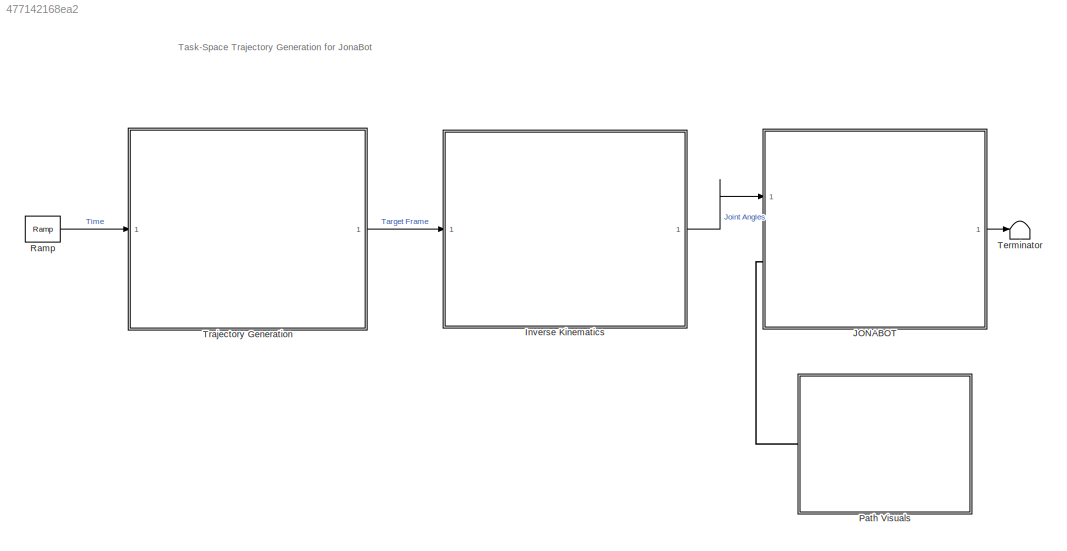
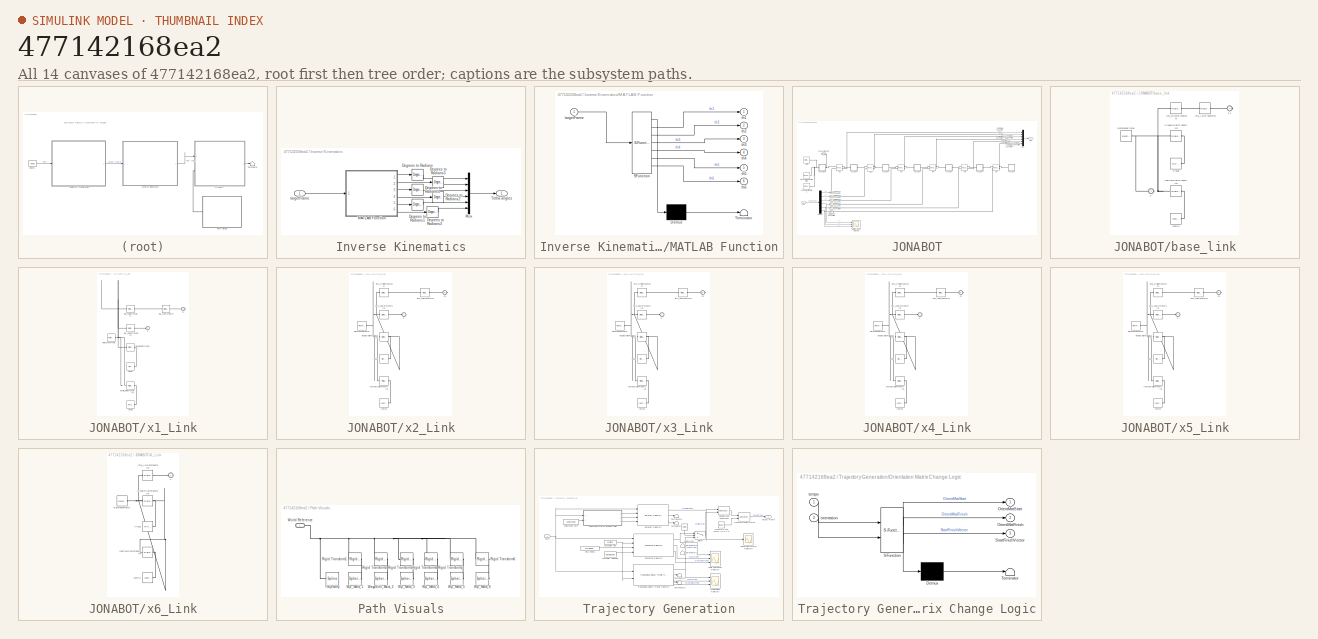
[diagram: thumbnail index - all 14 canvases of the model, root first then tree order]
MODEL slx_477142168ea2
KIND model
CONFIG AbsTol = auto
CONFIG EnableMultiTasking = off
CONFIG FixedStep = auto
CONFIG MaxStep = auto
CONFIG MinStep = auto
CONFIG RelTol = 1e-3
CONFIG SampleTimeConstraint = Unconstrained
CONFIG SolverName = VariableStepAuto
CONFIG StartTime = 0.0
CONFIG StopTime = 10.0
WORKSPACE source: external: MAT-File  (data not in archive)
BLOCK [SubSystem] Inverse Kinematics
  Ports = [1, 1]
  Priority = 2
  RequestExecContextInheritance = off
BLOCK [Reference] Inverse Kinematics/Degrees to Radians  REF=simulink_extras/Transformations/Degrees to
Radians
  Ports = [1, 1]
  SourceBlock = simulink_extras/Transformations/Degrees to\nRadians
  SourceProductBaseCode = SL
  SourceType = DegreesToRadians
BLOCK [Reference] Inverse Kinematics/Degrees to Radians1  REF=simulink_extras/Transformations/Degrees to
Radians
  Ports = [1, 1]
  SourceBlock = simulink_extras/Transformations/Degrees to\nRadians
  SourceProductBaseCode = SL
  SourceType = DegreesToRadians
BLOCK [Reference] Inverse Kinematics/Degrees to Radians2  REF=simulink_extras/Transformations/Degrees to
Radians
  Ports = [1, 1]
  SourceBlock = simulink_extras/Transformations/Degrees to\nRadians
  SourceProductBaseCode = SL
  SourceType = DegreesToRadians
BLOCK [Reference] Inverse Kinematics/Degrees to Radians3  REF=simulink_extras/Transformations/Degrees to
Radians
  Ports = [1, 1]
  SourceBlock = simulink_extras/Transformations/Degrees to\nRadians
  SourceProductBaseCode = SL
  SourceType = DegreesToRadians
BLOCK [Reference] Inverse Kinematics/Degrees to Radians4  REF=simulink_extras/Transformations/Degrees to
Radians
  Ports = [1, 1]
  SourceBlock = simulink_extras/Transformations/Degrees to\nRadians
  SourceProductBaseCode = SL
  SourceType = DegreesToRadians
BLOCK [Reference] Inverse Kinematics/Degrees to Radians5  REF=simulink_extras/Transformations/Degrees to
Radians
  Ports = [1, 1]
  SourceBlock = simulink_extras/Transformations/Degrees to\nRadians
  SourceProductBaseCode = SL
  SourceType = DegreesToRadians
BLOCK [SubSystem] Inverse Kinematics/MATLAB Function
  ErrorFcn = Stateflow.Translate.translate
  PermitHierarchicalResolution = ExplicitOnly
  Ports = [1, 6]
  RequestExecContextInheritance = off
  SFBlockType = MATLAB Function
  TreatAsAtomicUnit = on
BLOCK [Demux] Inverse Kinematics/MATLAB Function/ Demux 
  Outputs = 1
  Ports = [1, 1]
BLOCK [S-Function] Inverse Kinematics/MATLAB Function/ SFunction 
  EnableBusSupport = on
  FunctionName = sf_sfun
  PortCounts = [1 7]
  Ports = [1, 7]
  SFcnIsStateOwnerBlock = off
  SFunctionDeploymentMode = off
  Tag = Stateflow S-Function 2
BLOCK [Terminator] Inverse Kinematics/MATLAB Function/ Terminator 
BLOCK [Inport] Inverse Kinematics/MATLAB Function/targetFrame
BLOCK [Outport] Inverse Kinematics/MATLAB Function/th1
BLOCK [Outport] Inverse Kinematics/MATLAB Function/th2
  Port = 2
BLOCK [Outport] Inverse Kinematics/MATLAB Function/th3
  Port = 3
BLOCK [Outport] Inverse Kinematics/MATLAB Function/th4
  Port = 4
BLOCK [Outport] Inverse Kinematics/MATLAB Function/th5
  Port = 5
BLOCK [Outport] Inverse Kinematics/MATLAB Function/th6
  Port = 6
BLOCK [Mux] Inverse Kinematics/Mux
  DisplayOption = bar
  Inputs = 6
  Ports = [6, 1]
BLOCK [Outport] Inverse Kinematics/Tetha angles
BLOCK [Inport] Inverse Kinematics/targetFrame
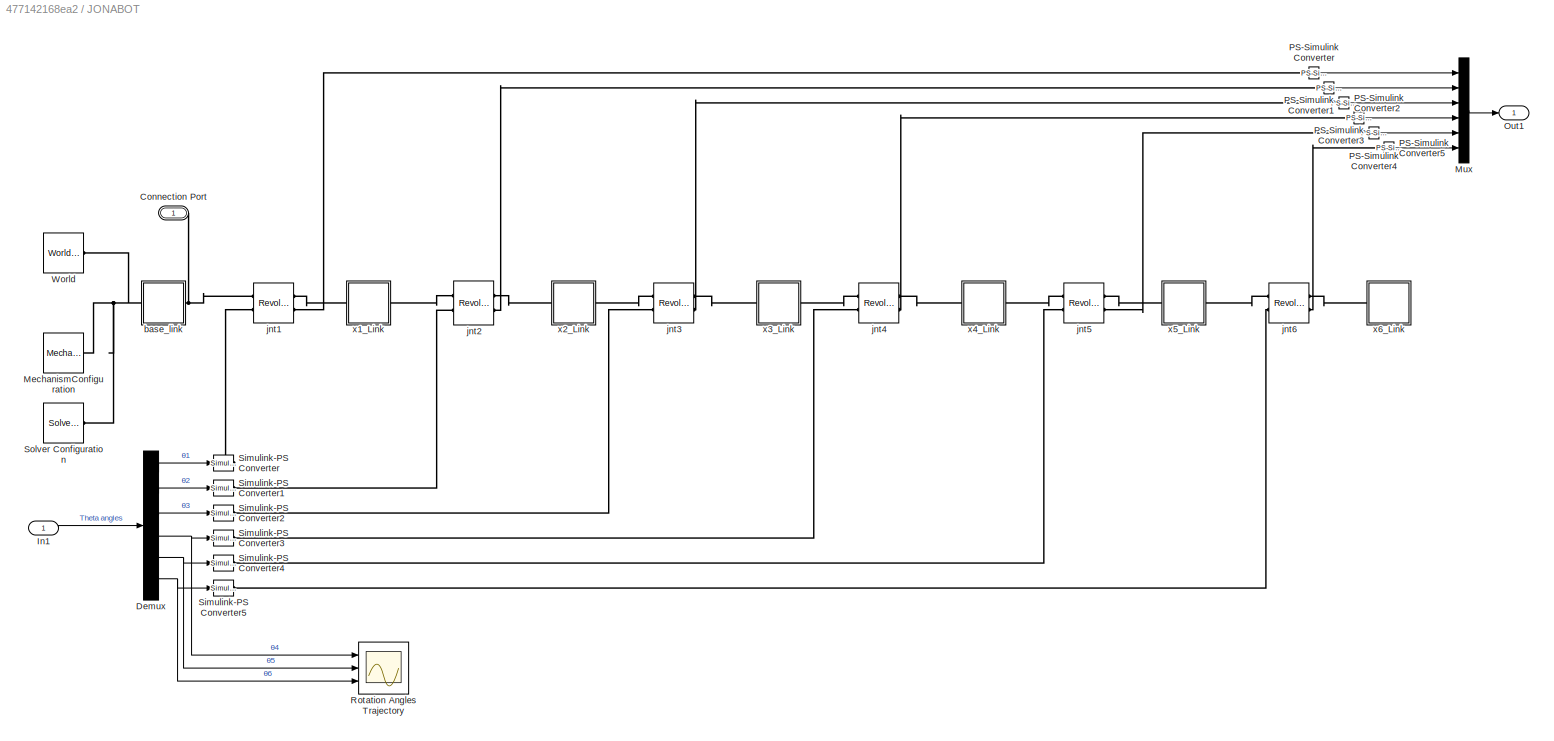
BLOCK [SubSystem] JONABOT
  Ports = [1, 1, 0, 0, 0, 1]
  Priority = 3
  RequestExecContextInheritance = off
BLOCK [PMIOPort] JONABOT/Connection Port
  Side = Left
BLOCK [Demux] JONABOT/Demux
  Outputs = 6
  Ports = [1, 6]
BLOCK [Inport] JONABOT/In1
BLOCK [Reference] JONABOT/MechanismConfiguration  REF=sm_lib/Utilities/Mechanism
Configuration
  Ports = [0, 0, 0, 0, 0, 0, 1]
  SourceBlock = sm_lib/Utilities/Mechanism\nConfiguration
  SourceProductBaseCode = MS
  SourceType = Mechanism\nConfiguration
BLOCK [Mux] JONABOT/Mux
  DisplayOption = bar
  Inputs = 6
  Ports = [6, 1]
BLOCK [Outport] JONABOT/Out1
BLOCK [Reference] JONABOT/PS-Simulink Converter  REF=nesl_utility/PS-Simulink
Converter
  Ports = [0, 1, 0, 0, 0, 1]
  SourceBlock = nesl_utility/PS-Simulink\nConverter
  SourceProductBaseCode = PW,SS
  SourceType = PS-Simulink\nConverter
BLOCK [Reference] JONABOT/PS-Simulink Converter1  REF=nesl_utility/PS-Simulink
Converter
  Ports = [0, 1, 0, 0, 0, 1]
  SourceBlock = nesl_utility/PS-Simulink\nConverter
  SourceProductBaseCode = PW,SS
  SourceType = PS-Simulink\nConverter
BLOCK [Reference] JONABOT/PS-Simulink Converter2  REF=nesl_utility/PS-Simulink
Converter
  Ports = [0, 1, 0, 0, 0, 1]
  SourceBlock = nesl_utility/PS-Simulink\nConverter
  SourceProductBaseCode = PW,SS
  SourceType = PS-Simulink\nConverter
BLOCK [Reference] JONABOT/PS-Simulink Converter3  REF=nesl_utility/PS-Simulink
Converter
  Ports = [0, 1, 0, 0, 0, 1]
  SourceBlock = nesl_utility/PS-Simulink\nConverter
  SourceProductBaseCode = PW,SS
  SourceType = PS-Simulink\nConverter
BLOCK [Reference] JONABOT/PS-Simulink Converter4  REF=nesl_utility/PS-Simulink
Converter
  Ports = [0, 1, 0, 0, 0, 1]
  SourceBlock = nesl_utility/PS-Simulink\nConverter
  SourceProductBaseCode = PW,SS
  SourceType = PS-Simulink\nConverter
BLOCK [Reference] JONABOT/PS-Simulink Converter5  REF=nesl_utility/PS-Simulink
Converter
  Ports = [0, 1, 0, 0, 0, 1]
  SourceBlock = nesl_utility/PS-Simulink\nConverter
  SourceProductBaseCode = PW,SS
  SourceType = PS-Simulink\nConverter
BLOCK [Scope] JONABOT/Rotation Angles Trajectory
  Floating = off
  NumInputPorts = 3
  Ports = [3]
  ScopeSpecificationString = Simulink.scopes.TimeScopeBlockCfg('CurrentConfiguration', extmgr.ConfigurationSet(extmgr.Configuration('Core','General UI',true),extmgr.Configuration('Core','Source UI',true),extmgr.Configuration('Sources','WiredSimulink',true,'DataLoggingVariableName','ScopeData2'),extmgr.Configuration('Visuals','Time Domain',true,'SerializedDisplays',{struct('MinYLimReal','-3.92697','MaxYLimReal','3.92699','YLab...<+1564ch>
BLOCK [Reference] JONABOT/Simulink-PS Converter  REF=nesl_utility/Simulink-PS
Converter
  Ports = [1, 0, 0, 0, 0, 0, 1]
  SourceBlock = nesl_utility/Simulink-PS\nConverter
  SourceProductBaseCode = PW,SS
  SourceType = Simulink-PS\nConverter
BLOCK [Reference] JONABOT/Simulink-PS Converter1  REF=nesl_utility/Simulink-PS
Converter
  Ports = [1, 0, 0, 0, 0, 0, 1]
  SourceBlock = nesl_utility/Simulink-PS\nConverter
  SourceProductBaseCode = PW,SS
  SourceType = Simulink-PS\nConverter
BLOCK [Reference] JONABOT/Simulink-PS Converter2  REF=nesl_utility/Simulink-PS
Converter
  Ports = [1, 0, 0, 0, 0, 0, 1]
  SourceBlock = nesl_utility/Simulink-PS\nConverter
  SourceProductBaseCode = PW,SS
  SourceType = Simulink-PS\nConverter
BLOCK [Reference] JONABOT/Simulink-PS Converter3  REF=nesl_utility/Simulink-PS
Converter
  Ports = [1, 0, 0, 0, 0, 0, 1]
  SourceBlock = nesl_utility/Simulink-PS\nConverter
  SourceProductBaseCode = PW,SS
  SourceType = Simulink-PS\nConverter
BLOCK [Reference] JONABOT/Simulink-PS Converter4  REF=nesl_utility/Simulink-PS
Converter
  Ports = [1, 0, 0, 0, 0, 0, 1]
  SourceBlock = nesl_utility/Simulink-PS\nConverter
  SourceProductBaseCode = PW,SS
  SourceType = Simulink-PS\nConverter
BLOCK [Reference] JONABOT/Simulink-PS Converter5  REF=nesl_utility/Simulink-PS
Converter
  Ports = [1, 0, 0, 0, 0, 0, 1]
  SourceBlock = nesl_utility/Simulink-PS\nConverter
  SourceProductBaseCode = PW,SS
  SourceType = Simulink-PS\nConverter
BLOCK [Reference] JONABOT/Solver Configuration  REF=nesl_utility/Solver
Configuration
  Ports = [0, 0, 0, 0, 0, 0, 1]
  SourceBlock = nesl_utility/Solver\nConfiguration
  SourceProductBaseCode = PW,SS
  SourceType = Solver\nConfiguration
BLOCK [Reference] JONABOT/World  REF=sm_lib/Frames and
Transforms/World Frame
  Ports = [0, 0, 0, 0, 0, 0, 1]
  SourceBlock = sm_lib/Frames and\nTransforms/World Frame
  SourceProductBaseCode = MS
  SourceType = World Frame
BLOCK [SubSystem] JONABOT/base_link
  Ports = [0, 0, 0, 0, 0, 1, 1]
  RequestExecContextInheritance = off
BLOCK [PMIOPort] JONABOT/base_link/F
  Side = Left
BLOCK [PMIOPort] JONABOT/base_link/F1
  Port = 2
  Side = Right
BLOCK [Reference] JONABOT/base_link/Inertia  REF=sm_lib/Body Elements/Inertia
  Ports = [0, 0, 0, 0, 0, 0, 1]
  SourceBlock = sm_lib/Body Elements/Inertia
  SourceProductBaseCode = MS
  SourceType = Inertia
BLOCK [Reference] JONABOT/base_link/InertiaOriginTransform  REF=sm_lib/Frames and
Transforms/Rigid
Transform
  Ports = [0, 0, 0, 0, 0, 1, 1]
  SourceBlock = sm_lib/Frames and\nTransforms/Rigid\nTransform
  SourceProductBaseCode = MS
  SourceType = Rigid\nTransform
BLOCK [Reference] JONABOT/base_link/ReferenceFrame  REF=sm_lib/Frames and
Transforms/Reference
Frame
  Ports = [0, 0, 0, 0, 0, 0, 1]
  SourceBlock = sm_lib/Frames and\nTransforms/Reference\nFrame
  SourceProductBaseCode = MS
  SourceType = Reference\nFrame
BLOCK [Reference] JONABOT/base_link/Visual  REF=sm_lib/Body Elements/File Solid
  Ports = [0, 0, 0, 0, 0, 0, 1]
  SourceBlock = sm_lib/Body Elements/File Solid
  SourceProductBaseCode = MS
  SourceType = File Solid
BLOCK [Reference] JONABOT/base_link/VisualOriginTransform  REF=sm_lib/Frames and
Transforms/Rigid
Transform
  Ports = [0, 0, 0, 0, 0, 1, 1]
  SourceBlock = sm_lib/Frames and\nTransforms/Rigid\nTransform
  SourceProductBaseCode = MS
  SourceType = Rigid\nTransform
BLOCK [Reference] JONABOT/base_link/jnt1_AxisTransform  REF=sm_lib/Frames and
Transforms/Rigid
Transform
  Ports = [0, 0, 0, 0, 0, 1, 1]
  SourceBlock = sm_lib/Frames and\nTransforms/Rigid\nTransform
  SourceProductBaseCode = MS
  SourceType = Rigid\nTransform
BLOCK [Reference] JONABOT/base_link/jnt1_OriginTransform  REF=sm_lib/Frames and
Transforms/Rigid
Transform
  Ports = [0, 0, 0, 0, 0, 1, 1]
  SourceBlock = sm_lib/Frames and\nTransforms/Rigid\nTransform
  SourceProductBaseCode = MS
  SourceType = Rigid\nTransform
BLOCK [Reference] JONABOT/jnt1  REF=sm_lib/Joints/Revolute Joint
  Ports = [0, 0, 0, 0, 0, 2, 2]
  SourceBlock = sm_lib/Joints/Revolute Joint
  SourceProductBaseCode = MS
  SourceType = Revolute Joint
BLOCK [Reference] JONABOT/jnt2  REF=sm_lib/Joints/Revolute Joint
  Ports = [0, 0, 0, 0, 0, 2, 2]
  SourceBlock = sm_lib/Joints/Revolute Joint
  SourceProductBaseCode = MS
  SourceType = Revolute Joint
BLOCK [Reference] JONABOT/jnt3  REF=sm_lib/Joints/Revolute Joint
  Ports = [0, 0, 0, 0, 0, 2, 2]
  SourceBlock = sm_lib/Joints/Revolute Joint
  SourceProductBaseCode = MS
  SourceType = Revolute Joint
BLOCK [Reference] JONABOT/jnt4  REF=sm_lib/Joints/Revolute Joint
  Ports = [0, 0, 0, 0, 0, 2, 2]
  SourceBlock = sm_lib/Joints/Revolute Joint
  SourceProductBaseCode = MS
  SourceType = Revolute Joint
BLOCK [Reference] JONABOT/jnt5  REF=sm_lib/Joints/Revolute Joint
  Ports = [0, 0, 0, 0, 0, 2, 2]
  SourceBlock = sm_lib/Joints/Revolute Joint
  SourceProductBaseCode = MS
  SourceType = Revolute Joint
BLOCK [Reference] JONABOT/jnt6  REF=sm_lib/Joints/Revolute Joint
  Ports = [0, 0, 0, 0, 0, 2, 2]
  SourceBlock = sm_lib/Joints/Revolute Joint
  SourceProductBaseCode = MS
  SourceType = Revolute Joint
BLOCK [SubSystem] JONABOT/x1_Link
  Ports = [0, 0, 0, 0, 0, 1, 1]
  RequestExecContextInheritance = off
BLOCK [PMIOPort] JONABOT/x1_Link/F
  Side = Left
BLOCK [PMIOPort] JONABOT/x1_Link/F1
  Port = 2
  Side = Right
BLOCK [Reference] JONABOT/x1_Link/Inertia  REF=sm_lib/Body Elements/Inertia
  Ports = [0, 0, 0, 0, 0, 0, 1]
  SourceBlock = sm_lib/Body Elements/Inertia
  SourceProductBaseCode = MS
  SourceType = Inertia
BLOCK [Reference] JONABOT/x1_Link/InertiaOriginTransform  REF=sm_lib/Frames and
Transforms/Rigid
Transform
  Ports = [0, 0, 0, 0, 0, 1, 1]
  SourceBlock = sm_lib/Frames and\nTransforms/Rigid\nTransform
  SourceProductBaseCode = MS
  SourceType = Rigid\nTransform
BLOCK [Reference] JONABOT/x1_Link/ReferenceFrame  REF=sm_lib/Frames and
Transforms/Reference
Frame
  Ports = [0, 0, 0, 0, 0, 0, 1]
  SourceBlock = sm_lib/Frames and\nTransforms/Reference\nFrame
  SourceProductBaseCode = MS
  SourceType = Reference\nFrame
BLOCK [Reference] JONABOT/x1_Link/Visual  REF=sm_lib/Body Elements/File Solid
  Ports = [0, 0, 0, 0, 0, 0, 1]
  SourceBlock = sm_lib/Body Elements/File Solid
  SourceProductBaseCode = MS
  SourceType = File Solid
BLOCK [Reference] JONABOT/x1_Link/VisualOriginTransform  REF=sm_lib/Frames and
Transforms/Rigid
Transform
  Ports = [0, 0, 0, 0, 0, 1, 1]
  SourceBlock = sm_lib/Frames and\nTransforms/Rigid\nTransform
  SourceProductBaseCode = MS
  SourceType = Rigid\nTransform
BLOCK [Reference] JONABOT/x1_Link/jnt1_AxisInvTransform  REF=sm_lib/Frames and
Transforms/Rigid
Transform
  Ports = [0, 0, 0, 0, 0, 1, 1]
  SourceBlock = sm_lib/Frames and\nTransforms/Rigid\nTransform
  SourceProductBaseCode = MS
  SourceType = Rigid\nTransform
BLOCK [Reference] JONABOT/x1_Link/jnt2_AxisTransform  REF=sm_lib/Frames and
Transforms/Rigid
Transform
  Ports = [0, 0, 0, 0, 0, 1, 1]
  SourceBlock = sm_lib/Frames and\nTransforms/Rigid\nTransform
  SourceProductBaseCode = MS
  SourceType = Rigid\nTransform
BLOCK [Reference] JONABOT/x1_Link/jnt2_OriginTransform  REF=sm_lib/Frames and
Transforms/Rigid
Transform
  Ports = [0, 0, 0, 0, 0, 1, 1]
  SourceBlock = sm_lib/Frames and\nTransforms/Rigid\nTransform
  SourceProductBaseCode = MS
  SourceType = Rigid\nTransform
BLOCK [SubSystem] JONABOT/x2_Link
  Ports = [0, 0, 0, 0, 0, 1, 1]
  RequestExecContextInheritance = off
BLOCK [PMIOPort] JONABOT/x2_Link/F
  Side = Left
BLOCK [PMIOPort] JONABOT/x2_Link/F1
  Port = 2
  Side = Right
BLOCK [Reference] JONABOT/x2_Link/Inertia  REF=sm_lib/Body Elements/Inertia
  Ports = [0, 0, 0, 0, 0, 0, 1]
  SourceBlock = sm_lib/Body Elements/Inertia
  SourceProductBaseCode = MS
  SourceType = Inertia
BLOCK [Reference] JONABOT/x2_Link/InertiaOriginTransform  REF=sm_lib/Frames and
Transforms/Rigid
Transform
  Ports = [0, 0, 0, 0, 0, 1, 1]
  SourceBlock = sm_lib/Frames and\nTransforms/Rigid\nTransform
  SourceProductBaseCode = MS
  SourceType = Rigid\nTransform
BLOCK [Reference] JONABOT/x2_Link/ReferenceFrame  REF=sm_lib/Frames and
Transforms/Reference
Frame
  Ports = [0, 0, 0, 0, 0, 0, 1]
  SourceBlock = sm_lib/Frames and\nTransforms/Reference\nFrame
  SourceProductBaseCode = MS
  SourceType = Reference\nFrame
BLOCK [Reference] JONABOT/x2_Link/Visual  REF=sm_lib/Body Elements/File Solid
  Ports = [0, 0, 0, 0, 0, 0, 1]
  SourceBlock = sm_lib/Body Elements/File Solid
  SourceProductBaseCode = MS
  SourceType = File Solid
BLOCK [Reference] JONABOT/x2_Link/VisualOriginTransform  REF=sm_lib/Frames and
Transforms/Rigid
Transform
  Ports = [0, 0, 0, 0, 0, 1, 1]
  SourceBlock = sm_lib/Frames and\nTransforms/Rigid\nTransform
  SourceProductBaseCode = MS
  SourceType = Rigid\nTransform
BLOCK [Reference] JONABOT/x2_Link/jnt2_AxisInvTransform  REF=sm_lib/Frames and
Transforms/Rigid
Transform
  Ports = [0, 0, 0, 0, 0, 1, 1]
  SourceBlock = sm_lib/Frames and\nTransforms/Rigid\nTransform
  SourceProductBaseCode = MS
  SourceType = Rigid\nTransform
BLOCK [Reference] JONABOT/x2_Link/jnt3_AxisTransform  REF=sm_lib/Frames and
Transforms/Rigid
Transform
  Ports = [0, 0, 0, 0, 0, 1, 1]
  SourceBlock = sm_lib/Frames and\nTransforms/Rigid\nTransform
  SourceProductBaseCode = MS
  SourceType = Rigid\nTransform
BLOCK [Reference] JONABOT/x2_Link/jnt3_OriginTransform  REF=sm_lib/Frames and
Transforms/Rigid
Transform
  Ports = [0, 0, 0, 0, 0, 1, 1]
  SourceBlock = sm_lib/Frames and\nTransforms/Rigid\nTransform
  SourceProductBaseCode = MS
  SourceType = Rigid\nTransform
BLOCK [SubSystem] JONABOT/x3_Link
  Ports = [0, 0, 0, 0, 0, 1, 1]
  RequestExecContextInheritance = off
BLOCK [PMIOPort] JONABOT/x3_Link/F
  Side = Left
BLOCK [PMIOPort] JONABOT/x3_Link/F1
  Port = 2
  Side = Right
BLOCK [Reference] JONABOT/x3_Link/Inertia  REF=sm_lib/Body Elements/Inertia
  Ports = [0, 0, 0, 0, 0, 0, 1]
  SourceBlock = sm_lib/Body Elements/Inertia
  SourceProductBaseCode = MS
  SourceType = Inertia
BLOCK [Reference] JONABOT/x3_Link/InertiaOriginTransform  REF=sm_lib/Frames and
Transforms/Rigid
Transform
  Ports = [0, 0, 0, 0, 0, 1, 1]
  SourceBlock = sm_lib/Frames and\nTransforms/Rigid\nTransform
  SourceProductBaseCode = MS
  SourceType = Rigid\nTransform
BLOCK [Reference] JONABOT/x3_Link/ReferenceFrame  REF=sm_lib/Frames and
Transforms/Reference
Frame
  Ports = [0, 0, 0, 0, 0, 0, 1]
  SourceBlock = sm_lib/Frames and\nTransforms/Reference\nFrame
  SourceProductBaseCode = MS
  SourceType = Reference\nFrame
BLOCK [Reference] JONABOT/x3_Link/Visual  REF=sm_lib/Body Elements/File Solid
  Ports = [0, 0, 0, 0, 0, 0, 1]
  SourceBlock = sm_lib/Body Elements/File Solid
  SourceProductBaseCode = MS
  SourceType = File Solid
BLOCK [Reference] JONABOT/x3_Link/VisualOriginTransform  REF=sm_lib/Frames and
Transforms/Rigid
Transform
  Ports = [0, 0, 0, 0, 0, 1, 1]
  SourceBlock = sm_lib/Frames and\nTransforms/Rigid\nTransform
  SourceProductBaseCode = MS
  SourceType = Rigid\nTransform
BLOCK [Reference] JONABOT/x3_Link/jnt3_AxisInvTransform  REF=sm_lib/Frames and
Transforms/Rigid
Transform
  Ports = [0, 0, 0, 0, 0, 1, 1]
  SourceBlock = sm_lib/Frames and\nTransforms/Rigid\nTransform
  SourceProductBaseCode = MS
  SourceType = Rigid\nTransform
BLOCK [Reference] JONABOT/x3_Link/jnt4_AxisTransform  REF=sm_lib/Frames and
Transforms/Rigid
Transform
  Ports = [0, 0, 0, 0, 0, 1, 1]
  SourceBlock = sm_lib/Frames and\nTransforms/Rigid\nTransform
  SourceProductBaseCode = MS
  SourceType = Rigid\nTransform
BLOCK [Reference] JONABOT/x3_Link/jnt4_OriginTransform  REF=sm_lib/Frames and
Transforms/Rigid
Transform
  Ports = [0, 0, 0, 0, 0, 1, 1]
  SourceBlock = sm_lib/Frames and\nTransforms/Rigid\nTransform
  SourceProductBaseCode = MS
  SourceType = Rigid\nTransform
BLOCK [SubSystem] JONABOT/x4_Link
  Ports = [0, 0, 0, 0, 0, 1, 1]
  RequestExecContextInheritance = off
BLOCK [PMIOPort] JONABOT/x4_Link/F
  Side = Left
BLOCK [PMIOPort] JONABOT/x4_Link/F1
  Port = 2
  Side = Right
BLOCK [Reference] JONABOT/x4_Link/Inertia  REF=sm_lib/Body Elements/Inertia
  Ports = [0, 0, 0, 0, 0, 0, 1]
  SourceBlock = sm_lib/Body Elements/Inertia
  SourceProductBaseCode = MS
  SourceType = Inertia
BLOCK [Reference] JONABOT/x4_Link/InertiaOriginTransform  REF=sm_lib/Frames and
Transforms/Rigid
Transform
  Ports = [0, 0, 0, 0, 0, 1, 1]
  SourceBlock = sm_lib/Frames and\nTransforms/Rigid\nTransform
  SourceProductBaseCode = MS
  SourceType = Rigid\nTransform
BLOCK [Reference] JONABOT/x4_Link/ReferenceFrame  REF=sm_lib/Frames and
Transforms/Reference
Frame
  Ports = [0, 0, 0, 0, 0, 0, 1]
  SourceBlock = sm_lib/Frames and\nTransforms/Reference\nFrame
  SourceProductBaseCode = MS
  SourceType = Reference\nFrame
BLOCK [Reference] JONABOT/x4_Link/Visual  REF=sm_lib/Body Elements/File Solid
  Ports = [0, 0, 0, 0, 0, 0, 1]
  SourceBlock = sm_lib/Body Elements/File Solid
  SourceProductBaseCode = MS
  SourceType = File Solid
BLOCK [Reference] JONABOT/x4_Link/VisualOriginTransform  REF=sm_lib/Frames and
Transforms/Rigid
Transform
  Ports = [0, 0, 0, 0, 0, 1, 1]
  SourceBlock = sm_lib/Frames and\nTransforms/Rigid\nTransform
  SourceProductBaseCode = MS
  SourceType = Rigid\nTransform
BLOCK [Reference] JONABOT/x4_Link/jnt4_AxisInvTransform  REF=sm_lib/Frames and
Transforms/Rigid
Transform
  Ports = [0, 0, 0, 0, 0, 1, 1]
  SourceBlock = sm_lib/Frames and\nTransforms/Rigid\nTransform
  SourceProductBaseCode = MS
  SourceType = Rigid\nTransform
BLOCK [Reference] JONABOT/x4_Link/jnt5_AxisTransform  REF=sm_lib/Frames and
Transforms/Rigid
Transform
  Ports = [0, 0, 0, 0, 0, 1, 1]
  SourceBlock = sm_lib/Frames and\nTransforms/Rigid\nTransform
  SourceProductBaseCode = MS
  SourceType = Rigid\nTransform
BLOCK [Reference] JONABOT/x4_Link/jnt5_OriginTransform  REF=sm_lib/Frames and
Transforms/Rigid
Transform
  Ports = [0, 0, 0, 0, 0, 1, 1]
  SourceBlock = sm_lib/Frames and\nTransforms/Rigid\nTransform
  SourceProductBaseCode = MS
  SourceType = Rigid\nTransform
BLOCK [SubSystem] JONABOT/x5_Link
  Ports = [0, 0, 0, 0, 0, 1, 1]
  RequestExecContextInheritance = off
BLOCK [PMIOPort] JONABOT/x5_Link/F
  Side = Left
BLOCK [PMIOPort] JONABOT/x5_Link/F1
  Port = 2
  Side = Right
BLOCK [Reference] JONABOT/x5_Link/Inertia  REF=sm_lib/Body Elements/Inertia
  Ports = [0, 0, 0, 0, 0, 0, 1]
  SourceBlock = sm_lib/Body Elements/Inertia
  SourceProductBaseCode = MS
  SourceType = Inertia
BLOCK [Reference] JONABOT/x5_Link/InertiaOriginTransform  REF=sm_lib/Frames and
Transforms/Rigid
Transform
  Ports = [0, 0, 0, 0, 0, 1, 1]
  SourceBlock = sm_lib/Frames and\nTransforms/Rigid\nTransform
  SourceProductBaseCode = MS
  SourceType = Rigid\nTransform
BLOCK [Reference] JONABOT/x5_Link/ReferenceFrame  REF=sm_lib/Frames and
Transforms/Reference
Frame
  Ports = [0, 0, 0, 0, 0, 0, 1]
  SourceBlock = sm_lib/Frames and\nTransforms/Reference\nFrame
  SourceProductBaseCode = MS
  SourceType = Reference\nFrame
BLOCK [Reference] JONABOT/x5_Link/Visual  REF=sm_lib/Body Elements/File Solid
  Ports = [0, 0, 0, 0, 0, 0, 1]
  SourceBlock = sm_lib/Body Elements/File Solid
  SourceProductBaseCode = MS
  SourceType = File Solid
BLOCK [Reference] JONABOT/x5_Link/VisualOriginTransform  REF=sm_lib/Frames and
Transforms/Rigid
Transform
  Ports = [0, 0, 0, 0, 0, 1, 1]
  SourceBlock = sm_lib/Frames and\nTransforms/Rigid\nTransform
  SourceProductBaseCode = MS
  SourceType = Rigid\nTransform
BLOCK [Reference] JONABOT/x5_Link/jnt5_AxisInvTransform  REF=sm_lib/Frames and
Transforms/Rigid
Transform
  Ports = [0, 0, 0, 0, 0, 1, 1]
  SourceBlock = sm_lib/Frames and\nTransforms/Rigid\nTransform
  SourceProductBaseCode = MS
  SourceType = Rigid\nTransform
BLOCK [Reference] JONABOT/x5_Link/jnt6_AxisTransform  REF=sm_lib/Frames and
Transforms/Rigid
Transform
  Ports = [0, 0, 0, 0, 0, 1, 1]
  SourceBlock = sm_lib/Frames and\nTransforms/Rigid\nTransform
  SourceProductBaseCode = MS
  SourceType = Rigid\nTransform
BLOCK [Reference] JONABOT/x5_Link/jnt6_OriginTransform  REF=sm_lib/Frames and
Transforms/Rigid
Transform
  Ports = [0, 0, 0, 0, 0, 1, 1]
  SourceBlock = sm_lib/Frames and\nTransforms/Rigid\nTransform
  SourceProductBaseCode = MS
  SourceType = Rigid\nTransform
BLOCK [SubSystem] JONABOT/x6_Link
  Ports = [0, 0, 0, 0, 0, 1]
  RequestExecContextInheritance = off
BLOCK [PMIOPort] JONABOT/x6_Link/F
  Side = Left
BLOCK [Reference] JONABOT/x6_Link/Inertia  REF=sm_lib/Body Elements/Inertia
  Ports = [0, 0, 0, 0, 0, 0, 1]
  SourceBlock = sm_lib/Body Elements/Inertia
  SourceProductBaseCode = MS
  SourceType = Inertia
BLOCK [Reference] JONABOT/x6_Link/InertiaOriginTransform  REF=sm_lib/Frames and
Transforms/Rigid
Transform
  Ports = [0, 0, 0, 0, 0, 1, 1]
  SourceBlock = sm_lib/Frames and\nTransforms/Rigid\nTransform
  SourceProductBaseCode = MS
  SourceType = Rigid\nTransform
BLOCK [Reference] JONABOT/x6_Link/ReferenceFrame  REF=sm_lib/Frames and
Transforms/Reference
Frame
  Ports = [0, 0, 0, 0, 0, 0, 1]
  SourceBlock = sm_lib/Frames and\nTransforms/Reference\nFrame
  SourceProductBaseCode = MS
  SourceType = Reference\nFrame
BLOCK [Reference] JONABOT/x6_Link/Visual  REF=sm_lib/Body Elements/File Solid
  Ports = [0, 0, 0, 0, 0, 0, 1]
  SourceBlock = sm_lib/Body Elements/File Solid
  SourceProductBaseCode = MS
  SourceType = File Solid
BLOCK [Reference] JONABOT/x6_Link/VisualOriginTransform  REF=sm_lib/Frames and
Transforms/Rigid
Transform
  Ports = [0, 0, 0, 0, 0, 1, 1]
  SourceBlock = sm_lib/Frames and\nTransforms/Rigid\nTransform
  SourceProductBaseCode = MS
  SourceType = Rigid\nTransform
BLOCK [Reference] JONABOT/x6_Link/jnt6_AxisInvTransform  REF=sm_lib/Frames and
Transforms/Rigid
Transform
  Ports = [0, 0, 0, 0, 0, 1, 1]
  SourceBlock = sm_lib/Frames and\nTransforms/Rigid\nTransform
  SourceProductBaseCode = MS
  SourceType = Rigid\nTransform
BLOCK [SubSystem] Path Visuals
  Ports = [0, 0, 0, 0, 0, 1]
  RequestExecContextInheritance = off
BLOCK [Reference] Path Visuals/Rigid Transform1  REF=sm_lib/Frames and
Transforms/Rigid
Transform
  Ports = [0, 0, 0, 0, 0, 1, 1]
  SourceBlock = sm_lib/Frames and\nTransforms/Rigid\nTransform
  SourceProductBaseCode = MS
  SourceType = Rigid\nTransform
BLOCK [Reference] Path Visuals/Rigid Transform2  REF=sm_lib/Frames and
Transforms/Rigid
Transform
  Ports = [0, 0, 0, 0, 0, 1, 1]
  SourceBlock = sm_lib/Frames and\nTransforms/Rigid\nTransform
  SourceProductBaseCode = MS
  SourceType = Rigid\nTransform
BLOCK [Reference] Path Visuals/Rigid Transform3  REF=sm_lib/Frames and
Transforms/Rigid
Transform
  Ports = [0, 0, 0, 0, 0, 1, 1]
  SourceBlock = sm_lib/Frames and\nTransforms/Rigid\nTransform
  SourceProductBaseCode = MS
  SourceType = Rigid\nTransform
BLOCK [Reference] Path Visuals/Rigid Transform4  REF=sm_lib/Frames and
Transforms/Rigid
Transform
  Ports = [0, 0, 0, 0, 0, 1, 1]
  SourceBlock = sm_lib/Frames and\nTransforms/Rigid\nTransform
  SourceProductBaseCode = MS
  SourceType = Rigid\nTransform
BLOCK [Reference] Path Visuals/Rigid Transform5  REF=sm_lib/Frames and
Transforms/Rigid
Transform
  Ports = [0, 0, 0, 0, 0, 1, 1]
  SourceBlock = sm_lib/Frames and\nTransforms/Rigid\nTransform
  SourceProductBaseCode = MS
  SourceType = Rigid\nTransform
BLOCK [Reference] Path Visuals/Rigid Transform6  REF=sm_lib/Frames and
Transforms/Rigid
Transform
  Ports = [0, 0, 0, 0, 0, 1, 1]
  SourceBlock = sm_lib/Frames and\nTransforms/Rigid\nTransform
  SourceProductBaseCode = MS
  SourceType = Rigid\nTransform
BLOCK [Reference] Path Visuals/Trajectory  REF=sm_lib/Curves and Surfaces/Spline
  Ports = [0, 0, 0, 0, 0, 1, 1]
  SourceBlock = sm_lib/Curves and Surfaces/Spline
  SourceProductBaseCode = MS
  SourceType = Spline
BLOCK [Reference] Path Visuals/Waypoint_Mark_2  REF=sm_lib/Body Elements/Spherical Solid
  Ports = [0, 0, 0, 0, 0, 0, 1]
  SourceBlock = sm_lib/Body Elements/Spherical Solid
  SourceProductBaseCode = MS
  SourceType = Spherical Solid
BLOCK [PMIOPort] Path Visuals/World Reference
  Side = Left
BLOCK [Reference] Path Visuals/Wp_Mark_1  REF=sm_lib/Body Elements/Spherical Solid
  Ports = [0, 0, 0, 0, 0, 0, 1]
  SourceBlock = sm_lib/Body Elements/Spherical Solid
  SourceProductBaseCode = MS
  SourceType = Spherical Solid
BLOCK [Reference] Path Visuals/Wp_Mark_3  REF=sm_lib/Body Elements/Spherical Solid
  Ports = [0, 0, 0, 0, 0, 0, 1]
  SourceBlock = sm_lib/Body Elements/Spherical Solid
  SourceProductBaseCode = MS
  SourceType = Spherical Solid
BLOCK [Reference] Path Visuals/Wp_Mark_4  REF=sm_lib/Body Elements/Spherical Solid
  Ports = [0, 0, 0, 0, 0, 0, 1]
  SourceBlock = sm_lib/Body Elements/Spherical Solid
  SourceProductBaseCode = MS
  SourceType = Spherical Solid
BLOCK [Reference] Path Visuals/Wp_Mark_5  REF=sm_lib/Body Elements/Spherical Solid
  Ports = [0, 0, 0, 0, 0, 0, 1]
  SourceBlock = sm_lib/Body Elements/Spherical Solid
  SourceProductBaseCode = MS
  SourceType = Spherical Solid
BLOCK [Reference] Path Visuals/Wp_Mark_6  REF=sm_lib/Body Elements/Spherical Solid
  Ports = [0, 0, 0, 0, 0, 0, 1]
  SourceBlock = sm_lib/Body Elements/Spherical Solid
  SourceProductBaseCode = MS
  SourceType = Spherical Solid
BLOCK [Reference] Ramp  REF=simulink/Sources/Ramp
  Ports = [0, 1]
  SourceBlock = simulink/Sources/Ramp
  SourceProductBaseCode = SL
  SourceType = Ramp
BLOCK [Terminator] Terminator
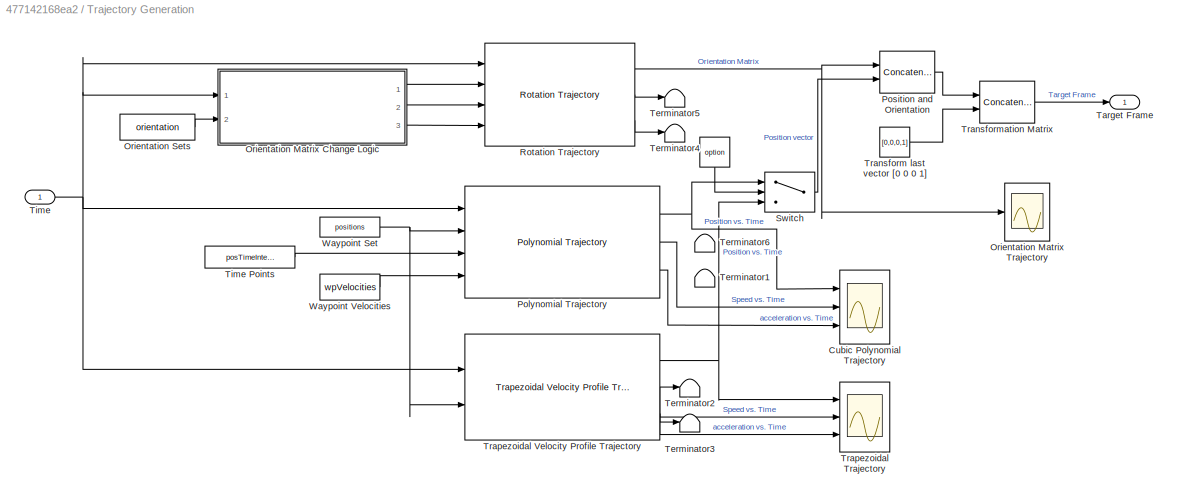
BLOCK [SubSystem] Trajectory Generation
  Ports = [1, 1]
  RequestExecContextInheritance = off
BLOCK [Constant] Trajectory Generation/ 
  NameLocation = left
  Value = option
BLOCK [Scope] Trajectory Generation/Cubic Polynomial Trajectory
  Floating = off
  NumInputPorts = 3
  Ports = [3]
  ScopeSpecificationString = Simulink.scopes.TimeScopeBlockCfg('CurrentConfiguration', extmgr.ConfigurationSet(extmgr.Configuration('Core','General UI',true),extmgr.Configuration('Core','Source UI',true),extmgr.Configuration('Sources','WiredSimulink',true),extmgr.Configuration('Visuals','Time Domain',true,'SerializedDisplays',{struct('MinYLimReal','-853.75','MaxYLimReal','2683.75','YLabelReal','','MinYLimMag',' 0.00000','MaxY...<+2932ch>
BLOCK [SubSystem] Trajectory Generation/Orientation Matrix Change Logic
  ErrorFcn = Stateflow.Translate.translate
  PermitHierarchicalResolution = ExplicitOnly
  Ports = [2, 3]
  RequestExecContextInheritance = off
  SFBlockType = Chart
  TreatAsAtomicUnit = on
BLOCK [Demux] Trajectory Generation/Orientation Matrix Change Logic/ Demux 
  Outputs = 1
  Ports = [1, 1]
BLOCK [S-Function] Trajectory Generation/Orientation Matrix Change Logic/ SFunction 
  EnableBusSupport = on
  FunctionName = sf_sfun
  PortCounts = [2 4]
  Ports = [2, 4]
  SFcnIsStateOwnerBlock = off
  SFunctionDeploymentMode = off
  Tag = Stateflow S-Function 4
BLOCK [Terminator] Trajectory Generation/Orientation Matrix Change Logic/ Terminator 
BLOCK [Outport] Trajectory Generation/Orientation Matrix Change Logic/OrientMatFinish
  Port = 2
BLOCK [Outport] Trajectory Generation/Orientation Matrix Change Logic/OrientMatStart
BLOCK [Outport] Trajectory Generation/Orientation Matrix Change Logic/StartFinishVector
  Port = 3
BLOCK [Inport] Trajectory Generation/Orientation Matrix Change Logic/orientation
  Port = 2
BLOCK [Inport] Trajectory Generation/Orientation Matrix Change Logic/tempo
BLOCK [Scope] Trajectory Generation/Orientation Matrix Trajectory
  Floating = off
  NumInputPorts = 1
  Ports = [1]
  ScopeSpecificationString = Simulink.scopes.TimeScopeBlockCfg('CurrentConfiguration', extmgr.ConfigurationSet(extmgr.Configuration('Core','General UI',true),extmgr.Configuration('Core','Source UI',true),extmgr.Configuration('Sources','WiredSimulink',true,'DataLoggingVariableName','ScopeData1'),extmgr.Configuration('Visuals','Time Domain',true,'SerializedDisplays',{struct('MinYLimReal','-1.25','MaxYLimReal','1.25','YLabelReal...<+1776ch>
BLOCK [Constant] Trajectory Generation/Orientation Sets
  Value = orientation
BLOCK [Reference] Trajectory Generation/Polynomial Trajectory  REF=robotcorelib/Polynomial Trajectory
  Ports = [4, 3]
  Priority = 1
  SourceBlock = robotcorelib/Polynomial Trajectory
  SourceProductBaseCode = NV,RO,RR,UV
  SourceType = robotics.slcore.internal.block.PolyTrajSys
BLOCK [Concatenate] Trajectory Generation/Position and Orientation
  ConcatenateDimension = 2
  Mode = Multidimensional array
  Ports = [2, 1]
BLOCK [Reference] Trajectory Generation/Rotation Trajectory  REF=robotcorelib/Rotation Trajectory
  Ports = [4, 3]
  SourceBlock = robotcorelib/Rotation Trajectory
  SourceProductBaseCode = NV,RO,RR,UV
  SourceType = robotics.slcore.internal.block.RotTrajSys
BLOCK [Switch] Trajectory Generation/Switch
  Criteria = u2 > Threshold
  InputSameDT = off
  SaturateOnIntegerOverflow = off
BLOCK [Outport] Trajectory Generation/Target Frame
BLOCK [Terminator] Trajectory Generation/Terminator1
  Commented = on
BLOCK [Terminator] Trajectory Generation/Terminator2
  Commented = on
BLOCK [Terminator] Trajectory Generation/Terminator3
  Commented = on
BLOCK [Terminator] Trajectory Generation/Terminator4
  Commented = on
BLOCK [Terminator] Trajectory Generation/Terminator5
  Commented = on
BLOCK [Terminator] Trajectory Generation/Terminator6
  Commented = on
BLOCK [Inport] Trajectory Generation/Time
BLOCK [Constant] Trajectory Generation/Time Points
  Value = posTimeIntervals
BLOCK [Constant] Trajectory Generation/Transform last vector [0 0 0 1]
  Value = [0,0,0,1]
  VectorParams1D = off
BLOCK [Concatenate] Trajectory Generation/Transformation Matrix
  Mode = Multidimensional array
  Ports = [2, 1]
BLOCK [Scope] Trajectory Generation/Trapezoidal Trajectory
  Floating = off
  NumInputPorts = 3
  Ports = [3]
  ScopeSpecificationString = Simulink.scopes.TimeScopeBlockCfg('CurrentConfiguration', extmgr.ConfigurationSet(extmgr.Configuration('Core','General UI',true),extmgr.Configuration('Core','Source UI',true),extmgr.Configuration('Sources','WiredSimulink',true,'DataLoggingVariableName','ScopeData1'),extmgr.Configuration('Visuals','Time Domain',true,'SerializedDisplays',{struct('MinYLimReal','-2231.25','MaxYLimReal','3581.25','YLab...<+3037ch>
BLOCK [Reference] Trajectory Generation/Trapezoidal Velocity Profile Trajectory  REF=robotcorelib/Trapezoidal Velocity Profile Trajectory
  Ports = [2, 3]
  SourceBlock = robotcorelib/Trapezoidal Velocity Profile Trajectory
  SourceProductBaseCode = NV,RO,RR,UV
  SourceType = robotics.slcore.internal.block.TrapVelTrajSys
BLOCK [Constant] Trajectory Generation/Waypoint Set
  Value = positions
BLOCK [Constant] Trajectory Generation/Waypoint Velocities
  Value = wpVelocities
ANNOTATION (root): Task-Space Trajectory Generation for JonaBot
LINE Inverse Kinematics/Degrees to Radians1:1 -> Inverse Kinematics/Mux:5
LINE Inverse Kinematics/Degrees to Radians2:1 -> Inverse Kinematics/Mux:4
LINE Inverse Kinematics/Degrees to Radians3:1 -> Inverse Kinematics/Mux:6
LINE Inverse Kinematics/Degrees to Radians4:1 -> Inverse Kinematics/Mux:3
LINE Inverse Kinematics/Degrees to Radians5:1 -> Inverse Kinematics/Mux:2
LINE Inverse Kinematics/Degrees to Radians:1 -> Inverse Kinematics/Mux:1
LINE Inverse Kinematics/MATLAB Function:1 -> Inverse Kinematics/Degrees to Radians:1
LINE Inverse Kinematics/MATLAB Function:2 -> Inverse Kinematics/Degrees to Radians5:1
LINE Inverse Kinematics/MATLAB Function:3 -> Inverse Kinematics/Degrees to Radians4:1
LINE Inverse Kinematics/MATLAB Function:4 -> Inverse Kinematics/Degrees to Radians2:1
LINE Inverse Kinematics/MATLAB Function:5 -> Inverse Kinematics/Degrees to Radians1:1
LINE Inverse Kinematics/MATLAB Function:6 -> Inverse Kinematics/Degrees to Radians3:1
LINE Inverse Kinematics/Mux:1 -> Inverse Kinematics/Tetha angles:1
LINE Inverse Kinematics/targetFrame:1 -> Inverse Kinematics/MATLAB Function:1
LINE Inverse Kinematics:1 -> JONABOT:1
LINE JONABOT/Demux:1 -> JONABOT/Simulink-PS Converter:1
LINE JONABOT/Demux:2 -> JONABOT/Simulink-PS Converter1:1
LINE JONABOT/Demux:3 -> JONABOT/Simulink-PS Converter2:1
NET JONABOT/Demux:4 -> JONABOT/Rotation Angles Trajectory:1, JONABOT/Simulink-PS Converter3:1
NET JONABOT/Demux:5 -> JONABOT/Rotation Angles Trajectory:2, JONABOT/Simulink-PS Converter4:1
NET JONABOT/Demux:6 -> JONABOT/Rotation Angles Trajectory:3, JONABOT/Simulink-PS Converter5:1
LINE JONABOT/In1:1 -> JONABOT/Demux:1
LINE JONABOT/Mux:1 -> JONABOT/Out1:1
LINE JONABOT/PS-Simulink Converter1:1 -> JONABOT/Mux:2
LINE JONABOT/PS-Simulink Converter2:1 -> JONABOT/Mux:3
LINE JONABOT/PS-Simulink Converter3:1 -> JONABOT/Mux:4
LINE JONABOT/PS-Simulink Converter4:1 -> JONABOT/Mux:5
LINE JONABOT/PS-Simulink Converter5:1 -> JONABOT/Mux:6
LINE JONABOT/PS-Simulink Converter:1 -> JONABOT/Mux:1
LINE JONABOT:1 -> Terminator:1
LINE Ramp:1 -> Trajectory Generation:1
LINE Trajectory Generation/ :1 -> Trajectory Generation/Switch:2
LINE Trajectory Generation/Orientation Matrix Change Logic:1 -> Trajectory Generation/Rotation Trajectory:2
LINE Trajectory Generation/Orientation Matrix Change Logic:2 -> Trajectory Generation/Rotation Trajectory:3
LINE Trajectory Generation/Orientation Matrix Change Logic:3 -> Trajectory Generation/Rotation Trajectory:4
LINE Trajectory Generation/Orientation Sets:1 -> Trajectory Generation/Orientation Matrix Change Logic:2
NET Trajectory Generation/Polynomial Trajectory:1 -> Trajectory Generation/Cubic Polynomial Trajectory:1, Trajectory Generation/Switch:1
LINE Trajectory Generation/Polynomial Trajectory:2 -> Trajectory Generation/Cubic Polynomial Trajectory:2
LINE Trajectory Generation/Polynomial Trajectory:3 -> Trajectory Generation/Cubic Polynomial Trajectory:3
LINE Trajectory Generation/Position and Orientation:1 -> Trajectory Generation/Transformation Matrix:1
NET Trajectory Generation/Rotation Trajectory:1 -> Trajectory Generation/Orientation Matrix Trajectory:1, Trajectory Generation/Position and Orientation:1
LINE Trajectory Generation/Rotation Trajectory:2 -> Trajectory Generation/Terminator5:1
LINE Trajectory Generation/Rotation Trajectory:3 -> Trajectory Generation/Terminator4:1
LINE Trajectory Generation/Switch:1 -> Trajectory Generation/Position and Orientation:2
LINE Trajectory Generation/Time Points:1 -> Trajectory Generation/Polynomial Trajectory:3
NET Trajectory Generation/Time:1 -> Trajectory Generation/Orientation Matrix Change Logic:1, Trajectory Generation/Polynomial Trajectory:1, Trajectory Generation/Rotation Trajectory:1, Trajectory Generation/Trapezoidal Velocity Profile Trajectory:1
LINE Trajectory Generation/Transform last vector [0 0 0 1]:1 -> Trajectory Generation/Transformation Matrix:2
LINE Trajectory Generation/Transformation Matrix:1 -> Trajectory Generation/Target Frame:1
NET Trajectory Generation/Trapezoidal Velocity Profile Trajectory:1 -> Trajectory Generation/Switch:3, Trajectory Generation/Trapezoidal Trajectory:1
NET Trajectory Generation/Trapezoidal Velocity Profile Trajectory:2 -> Trajectory Generation/Terminator2:1, Trajectory Generation/Trapezoidal Trajectory:2
NET Trajectory Generation/Trapezoidal Velocity Profile Trajectory:3 -> Trajectory Generation/Terminator3:1, Trajectory Generation/Trapezoidal Trajectory:3
NET Trajectory Generation/Waypoint Set:1 -> Trajectory Generation/Polynomial Trajectory:2, Trajectory Generation/Trapezoidal Velocity Profile Trajectory:2
LINE Trajectory Generation/Waypoint Velocities:1 -> Trajectory Generation/Polynomial Trajectory:4
LINE Trajectory Generation:1 -> Inverse Kinematics:1
PNET net1: JONABOT/Connection Port:RConn1 -- JONABOT/base_link:RConn1 -- JONABOT/jnt1:LConn1
PNET net2: JONABOT/MechanismConfiguration:RConn1 -- JONABOT/Solver Configuration:RConn1 -- JONABOT/World:RConn1 -- JONABOT/base_link:LConn1
PLINE JONABOT/PS-Simulink Converter1:LConn1 -- JONABOT/jnt2:RConn2
PLINE JONABOT/PS-Simulink Converter2:LConn1 -- JONABOT/jnt3:RConn2
PLINE JONABOT/PS-Simulink Converter3:LConn1 -- JONABOT/jnt4:RConn2
PLINE JONABOT/PS-Simulink Converter4:LConn1 -- JONABOT/jnt5:RConn2
PLINE JONABOT/PS-Simulink Converter5:LConn1 -- JONABOT/jnt6:RConn2
PLINE JONABOT/PS-Simulink Converter:LConn1 -- JONABOT/jnt1:RConn2
PLINE JONABOT/Simulink-PS Converter1:RConn1 -- JONABOT/jnt2:LConn2
PLINE JONABOT/Simulink-PS Converter2:RConn1 -- JONABOT/jnt3:LConn2
PLINE JONABOT/Simulink-PS Converter3:RConn1 -- JONABOT/jnt4:LConn2
PLINE JONABOT/Simulink-PS Converter4:RConn1 -- JONABOT/jnt5:LConn2
PLINE JONABOT/Simulink-PS Converter5:RConn1 -- JONABOT/jnt6:LConn2
PLINE JONABOT/Simulink-PS Converter:RConn1 -- JONABOT/jnt1:LConn2
PLINE JONABOT/base_link/F1:RConn1 -- JONABOT/base_link/jnt1_AxisTransform:RConn1
PNET net3: JONABOT/base_link/F:RConn1 -- JONABOT/base_link/InertiaOriginTransform:LConn1 -- JONABOT/base_link/ReferenceFrame:RConn1 -- JONABOT/base_link/VisualOriginTransform:LConn1 -- JONABOT/base_link/jnt1_OriginTransform:LConn1
PLINE JONABOT/base_link/Inertia:RConn1 -- JONABOT/base_link/InertiaOriginTransform:RConn1
PLINE JONABOT/base_link/Visual:RConn1 -- JONABOT/base_link/VisualOriginTransform:RConn1
PLINE JONABOT/base_link/jnt1_AxisTransform:LConn1 -- JONABOT/base_link/jnt1_OriginTransform:RConn1
PLINE JONABOT/jnt1:RConn1 -- JONABOT/x1_Link:LConn1
PLINE JONABOT/jnt2:LConn1 -- JONABOT/x1_Link:RConn1
PLINE JONABOT/jnt2:RConn1 -- JONABOT/x2_Link:LConn1
PLINE JONABOT/jnt3:LConn1 -- JONABOT/x2_Link:RConn1
PLINE JONABOT/jnt3:RConn1 -- JONABOT/x3_Link:LConn1
PLINE JONABOT/jnt4:LConn1 -- JONABOT/x3_Link:RConn1
PLINE JONABOT/jnt4:RConn1 -- JONABOT/x4_Link:LConn1
PLINE JONABOT/jnt5:LConn1 -- JONABOT/x4_Link:RConn1
PLINE JONABOT/jnt5:RConn1 -- JONABOT/x5_Link:LConn1
PLINE JONABOT/jnt6:LConn1 -- JONABOT/x5_Link:RConn1
PLINE JONABOT/jnt6:RConn1 -- JONABOT/x6_Link:LConn1
PLINE JONABOT/x1_Link/F1:RConn1 -- JONABOT/x1_Link/jnt2_AxisTransform:RConn1
PLINE JONABOT/x1_Link/F:RConn1 -- JONABOT/x1_Link/jnt1_AxisInvTransform:RConn1
PLINE JONABOT/x1_Link/Inertia:RConn1 -- JONABOT/x1_Link/InertiaOriginTransform:RConn1
PNET net4: JONABOT/x1_Link/InertiaOriginTransform:LConn1 -- JONABOT/x1_Link/ReferenceFrame:RConn1 -- JONABOT/x1_Link/VisualOriginTransform:LConn1 -- JONABOT/x1_Link/jnt1_AxisInvTransform:LConn1 -- JONABOT/x1_Link/jnt2_OriginTransform:LConn1
PLINE JONABOT/x1_Link/Visual:RConn1 -- JONABOT/x1_Link/VisualOriginTransform:RConn1
PLINE JONABOT/x1_Link/jnt2_AxisTransform:LConn1 -- JONABOT/x1_Link/jnt2_OriginTransform:RConn1
PLINE JONABOT/x2_Link/F1:RConn1 -- JONABOT/x2_Link/jnt3_AxisTransform:RConn1
PLINE JONABOT/x2_Link/F:RConn1 -- JONABOT/x2_Link/jnt2_AxisInvTransform:RConn1
PLINE JONABOT/x2_Link/Inertia:RConn1 -- JONABOT/x2_Link/InertiaOriginTransform:RConn1
PNET net5: JONABOT/x2_Link/InertiaOriginTransform:LConn1 -- JONABOT/x2_Link/ReferenceFrame:RConn1 -- JONABOT/x2_Link/VisualOriginTransform:LConn1 -- JONABOT/x2_Link/jnt2_AxisInvTransform:LConn1 -- JONABOT/x2_Link/jnt3_OriginTransform:LConn1
PLINE JONABOT/x2_Link/Visual:RConn1 -- JONABOT/x2_Link/VisualOriginTransform:RConn1
PLINE JONABOT/x2_Link/jnt3_AxisTransform:LConn1 -- JONABOT/x2_Link/jnt3_OriginTransform:RConn1
PLINE JONABOT/x3_Link/F1:RConn1 -- JONABOT/x3_Link/jnt4_AxisTransform:RConn1
PLINE JONABOT/x3_Link/F:RConn1 -- JONABOT/x3_Link/jnt3_AxisInvTransform:RConn1
PLINE JONABOT/x3_Link/Inertia:RConn1 -- JONABOT/x3_Link/InertiaOriginTransform:RConn1
PNET net6: JONABOT/x3_Link/InertiaOriginTransform:LConn1 -- JONABOT/x3_Link/ReferenceFrame:RConn1 -- JONABOT/x3_Link/VisualOriginTransform:LConn1 -- JONABOT/x3_Link/jnt3_AxisInvTransform:LConn1 -- JONABOT/x3_Link/jnt4_OriginTransform:LConn1
PLINE JONABOT/x3_Link/Visual:RConn1 -- JONABOT/x3_Link/VisualOriginTransform:RConn1
PLINE JONABOT/x3_Link/jnt4_AxisTransform:LConn1 -- JONABOT/x3_Link/jnt4_OriginTransform:RConn1
PLINE JONABOT/x4_Link/F1:RConn1 -- JONABOT/x4_Link/jnt5_AxisTransform:RConn1
PLINE JONABOT/x4_Link/F:RConn1 -- JONABOT/x4_Link/jnt4_AxisInvTransform:RConn1
PLINE JONABOT/x4_Link/Inertia:RConn1 -- JONABOT/x4_Link/InertiaOriginTransform:RConn1
PNET net7: JONABOT/x4_Link/InertiaOriginTransform:LConn1 -- JONABOT/x4_Link/ReferenceFrame:RConn1 -- JONABOT/x4_Link/VisualOriginTransform:LConn1 -- JONABOT/x4_Link/jnt4_AxisInvTransform:LConn1 -- JONABOT/x4_Link/jnt5_OriginTransform:LConn1
PLINE JONABOT/x4_Link/Visual:RConn1 -- JONABOT/x4_Link/VisualOriginTransform:RConn1
PLINE JONABOT/x4_Link/jnt5_AxisTransform:LConn1 -- JONABOT/x4_Link/jnt5_OriginTransform:RConn1
PLINE JONABOT/x5_Link/F1:RConn1 -- JONABOT/x5_Link/jnt6_AxisTransform:RConn1
PLINE JONABOT/x5_Link/F:RConn1 -- JONABOT/x5_Link/jnt5_AxisInvTransform:RConn1
PLINE JONABOT/x5_Link/Inertia:RConn1 -- JONABOT/x5_Link/InertiaOriginTransform:RConn1
PNET net8: JONABOT/x5_Link/InertiaOriginTransform:LConn1 -- JONABOT/x5_Link/ReferenceFrame:RConn1 -- JONABOT/x5_Link/VisualOriginTransform:LConn1 -- JONABOT/x5_Link/jnt5_AxisInvTransform:LConn1 -- JONABOT/x5_Link/jnt6_OriginTransform:LConn1
PLINE JONABOT/x5_Link/Visual:RConn1 -- JONABOT/x5_Link/VisualOriginTransform:RConn1
PLINE JONABOT/x5_Link/jnt6_AxisTransform:LConn1 -- JONABOT/x5_Link/jnt6_OriginTransform:RConn1
PLINE JONABOT/x6_Link/F:RConn1 -- JONABOT/x6_Link/jnt6_AxisInvTransform:RConn1
PLINE JONABOT/x6_Link/Inertia:RConn1 -- JONABOT/x6_Link/InertiaOriginTransform:RConn1
PNET net9: JONABOT/x6_Link/InertiaOriginTransform:LConn1 -- JONABOT/x6_Link/ReferenceFrame:RConn1 -- JONABOT/x6_Link/VisualOriginTransform:LConn1 -- JONABOT/x6_Link/jnt6_AxisInvTransform:LConn1
PLINE JONABOT/x6_Link/Visual:RConn1 -- JONABOT/x6_Link/VisualOriginTransform:RConn1
PLINE JONABOT:LConn1 -- Path Visuals:LConn1
PNET net10: Path Visuals/Rigid Transform1:LConn1 -- Path Visuals/Rigid Transform2:LConn1 -- Path Visuals/Rigid Transform3:LConn1 -- Path Visuals/Rigid Transform4:LConn1 -- Path Visuals/Rigid Transform5:LConn1 -- Path Visuals/Rigid Transform6:LConn1 -- Path Visuals/Trajectory:LConn1 -- Path Visuals/World Reference:RConn1
PLINE Path Visuals/Rigid Transform1:RConn1 -- Path Visuals/Wp_Mark_1:RConn1
PLINE Path Visuals/Rigid Transform2:RConn1 -- Path Visuals/Waypoint_Mark_2:RConn1
PLINE Path Visuals/Rigid Transform3:RConn1 -- Path Visuals/Wp_Mark_3:RConn1
PLINE Path Visuals/Rigid Transform4:RConn1 -- Path Visuals/Wp_Mark_4:RConn1
PLINE Path Visuals/Rigid Transform5:RConn1 -- Path Visuals/Wp_Mark_5:RConn1
PLINE Path Visuals/Rigid Transform6:RConn1 -- Path Visuals/Wp_Mark_6:RConn1
note: NET lines group one-source signal fan-out (src -> all destinations, sorted); 1:1 wires keep LINE; PNET lines group multi-terminal physical nets as a canonical sorted terminal list (undirected conserving connections); 2-terminal nets keep the pairwise PLINE form
CHART Inverse Kinematics/MATLAB Function states=1 transitions=1
  STATE_LABEL 'eML_blk_kernel()'
  STATE_LABEL 'SCRIPT:\nfunction [th1,th2,th3,th4,th5,th6] = inverseKinematicsFunc (targetFrame)\n%% CALCULATES THE INVERSE KINEMATICS OF A GIVEN TARGET FOR THE JONABOT\n\n%% 1.INITIALIZATION OF VARIABLES\n% Allocate a variables for the robot angles (theta 1-6)\n th1 = 0;\n th2 = 0;\n th3 = 0;\n th4 = 0;\n th5 = 0;\n th6 = 0;\n\n% Provide the length of the link 1, 2 and the offset a2 of the robot\n l2 = 1600;\n l3 = 1350; \n a2...<+3608ch>'
CHART Trajectory Generation/Orientation Matrix Change Logic states=2 transitions=3
  STATE_LABEL 'State1_Produce_Next_Orientation\n%LOGIC TO CHOOSE START AND FINISH ORIENTATION MATRIX FROM WAY POINT SET\n%Obtain start orientation matrix from the orientation Matrix set\nOrientMatStart = orientation((j*3)-2:j*3,1:3);\n%Obtain finish orientation matrix from the orientation Matrix set\nOrientMatFinish = orientation(((j+1)*3)-2:(j+1)*3,1:3);\n% Create Dynamic-two-value time vector for orientation block\nS...<+72ch>'
  STATE_LABEL 'State2_Increment_Step\n%Increment step for new way point\nj=j+1;\n'
CHART  states=0 transitions=0
CHART  states=0 transitions=0
